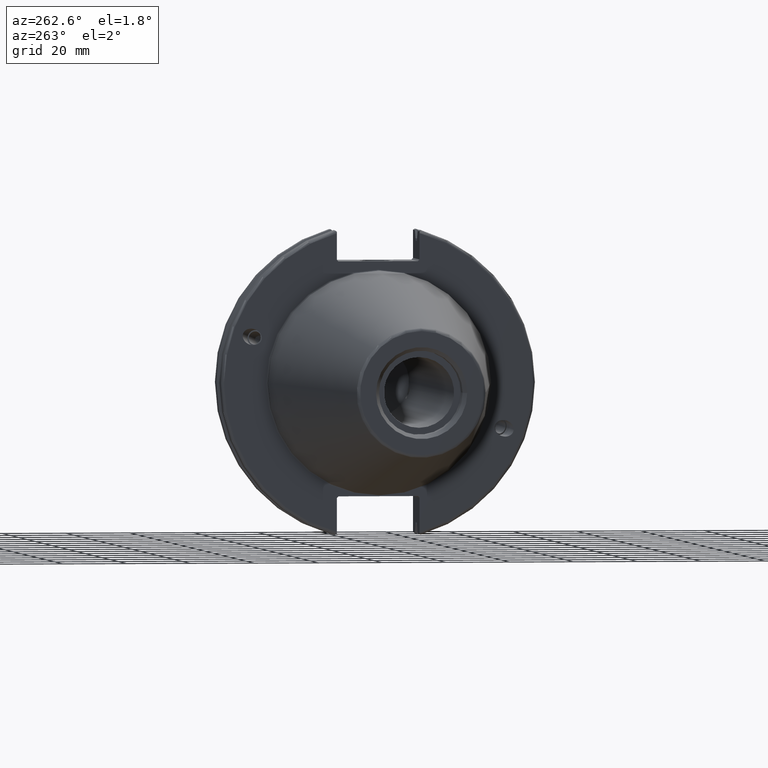
[diagram: clean part render]
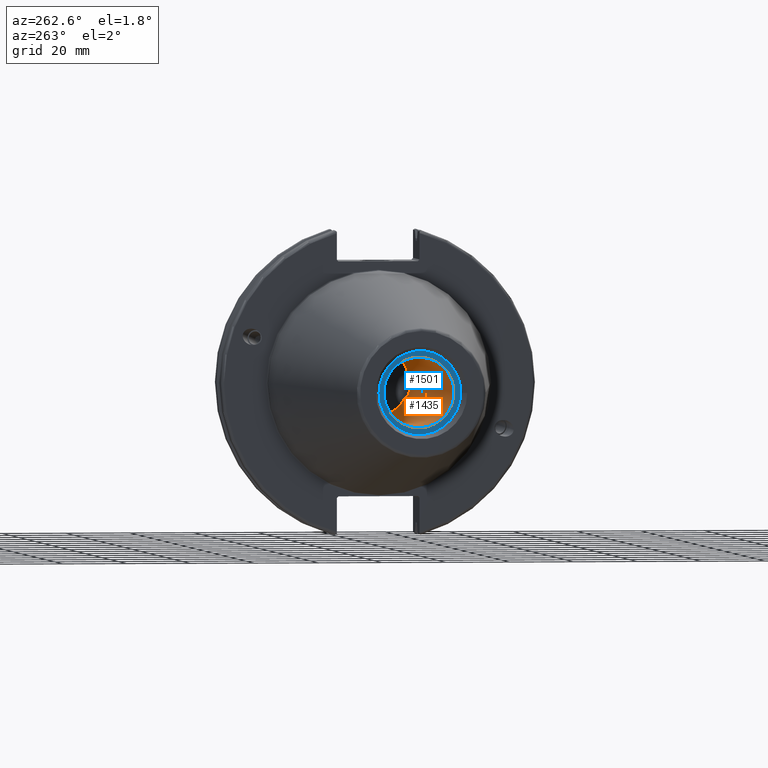
[diagram: same view with the hole feature highlighted: cylindrical wall and planar end face, labeled with their STEP entity ids]
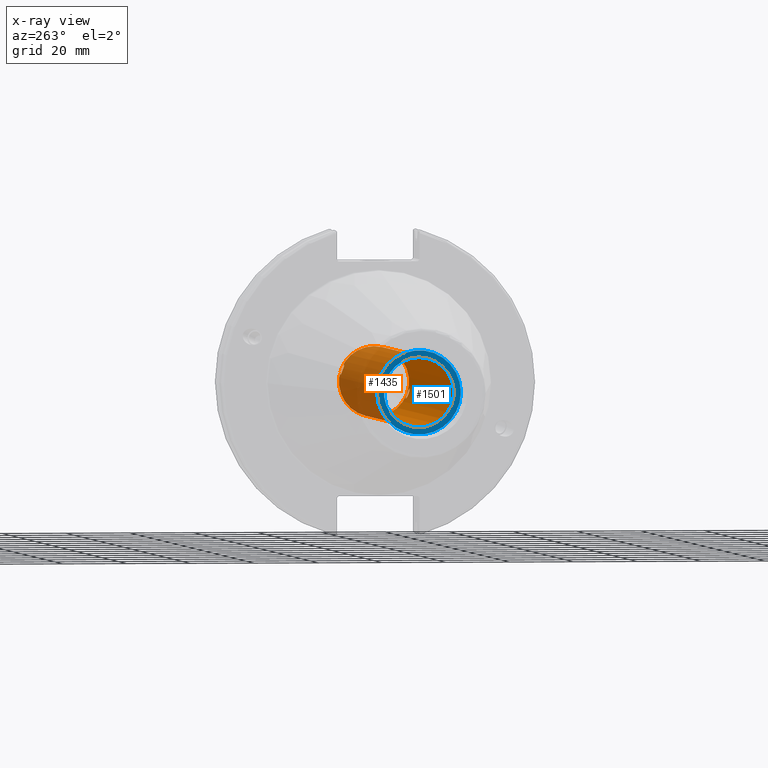
[diagram: x-ray of the same camera — body ghosted, the hole faces saturated]
A machine part, auxiliary view. The highlighted faces form one hole feature of diameter 21.971 mm: the cylindrical wall (entity #1435, orange) and its adjacent planar end face (entity #1501, blue) — they share a circular edge in the B-rep.
The next image is the same camera in x-ray (body ghosted, the hole faces saturated) — the bore reads through the body.
Wall:
#33=B_SPLINE_CURVE_WITH_KNOTS('',3,(#2183,#2184,#2185,#2186,#2187,#2188,
#2189,#2190,#2191,#2192,#2193,#2194,#2195,#2196,#2197,#2198,#2199,#2200,
#2201,#2202,#2203,#2204,#2205,#2206,#2207,#2208),.UNSPECIFIED.,.F.,.F.,
(4,2,2,2,2,2,2,2,2,2,2,2,4),(0.,0.0611574273332741,0.122314854666548,0.183471284102352,
0.244627713538157,0.305784142973961,0.366940572409765,0.428097999743039,
0.489255427076313,0.550412854409587,0.611570281742862,0.672726711178665,
0.733883140614469),.UNSPECIFIED.);
#34=B_SPLINE_CURVE_WITH_KNOTS('',3,(#2209,#2210,#2211,#2212,#2213,#2214,
#2215,#2216,#2217,#2218),.UNSPECIFIED.,.F.,.F.,(4,2,2,2,4),(0.733883140614469,
0.795039570050273,0.856195999486077,0.917353426819352,0.978510854152626),
 .UNSPECIFIED.);
#35=B_SPLINE_CURVE_WITH_KNOTS('',3,(#2221,#2222,#2223,#2224,#2225,#2226,
#2227,#2228,#2229,#2230,#2231,#2232,#2233,#2234,#2235,#2236,#2237,#2238,
#2239,#2240,#2241,#2242,#2243,#2244,#2245,#2246),.UNSPECIFIED.,.F.,.F.,
(4,2,2,2,2,2,2,2,2,2,2,2,4),(0.,0.0611574273332741,0.122314854666548,0.183471284102352,
0.244627713538157,0.305784142973961,0.366940572409765,0.428097999743039,
0.489255427076313,0.550412854409587,0.611570281742862,0.672726711178665,
0.733883140614469),.UNSPECIFIED.);
#36=B_SPLINE_CURVE_WITH_KNOTS('',3,(#2247,#2248,#2249,#2250,#2251,#2252,
#2253,#2254,#2255,#2256),.UNSPECIFIED.,.F.,.F.,(4,2,2,2,4),(0.733883140614469,
0.795039570050273,0.856195999486077,0.917353426819352,0.978510854152626),
 .UNSPECIFIED.);
#98=LINE('',#2180,#188);
#188=VECTOR('',#1773,10.9855);
#266=CYLINDRICAL_SURFACE('',#1562,10.9855);
#291=FACE_BOUND('',#443,.T.);
#292=FACE_BOUND('',#444,.T.);
#356=FACE_OUTER_BOUND('',#442,.T.);
#442=EDGE_LOOP('',(#1031,#1032,#1033,#1034));
#443=EDGE_LOOP('',(#1035,#1036));
#444=EDGE_LOOP('',(#1037,#1038));
#553=CIRCLE('',#1561,10.9855);
#554=CIRCLE('',#1563,10.9855);
#634=VERTEX_POINT('',#2174);
#635=VERTEX_POINT('',#2178);
#636=VERTEX_POINT('',#2181);
#637=VERTEX_POINT('',#2182);
#638=VERTEX_POINT('',#2219);
#639=VERTEX_POINT('',#2220);
#789=EDGE_CURVE('',#634,#634,#553,.T.);
#791=EDGE_CURVE('',#635,#635,#554,.T.);
#792=EDGE_CURVE('',#635,#634,#98,.T.);
#793=EDGE_CURVE('',#636,#637,#33,.T.);
#794=EDGE_CURVE('',#637,#636,#34,.T.);
#795=EDGE_CURVE('',#638,#639,#35,.T.);
#796=EDGE_CURVE('',#639,#638,#36,.T.);
#1031=ORIENTED_EDGE('',*,*,#791,.F.);
#1032=ORIENTED_EDGE('',*,*,#792,.T.);
#1033=ORIENTED_EDGE('',*,*,#789,.F.);
#1034=ORIENTED_EDGE('',*,*,#792,.F.);
#1035=ORIENTED_EDGE('',*,*,#793,.F.);
#1036=ORIENTED_EDGE('',*,*,#794,.F.);
#1037=ORIENTED_EDGE('',*,*,#795,.F.);
#1038=ORIENTED_EDGE('',*,*,#796,.F.);
#1435=ADVANCED_FACE('',(#356,#291,#292),#266,.F.);
#1561=AXIS2_PLACEMENT_3D('',#2175,#1766,#1767);
#1562=AXIS2_PLACEMENT_3D('',#2177,#1769,#1770);
#1563=AXIS2_PLACEMENT_3D('',#2179,#1771,#1772);
#1766=DIRECTION('center_axis',(-1.,0.,0.));
#1767=DIRECTION('ref_axis',(0.,0.,1.));
#1769=DIRECTION('center_axis',(-1.,0.,0.));
#1770=DIRECTION('ref_axis',(0.,0.,1.));
#1771=DIRECTION('center_axis',(1.,0.,0.));
#1772=DIRECTION('ref_axis',(0.,0.,1.));
#1773=DIRECTION('',(1.,0.,0.));
#2174=CARTESIAN_POINT('',(13.4,-1.34533574120333E-15,-10.9855));
#2175=CARTESIAN_POINT('Origin',(13.4,0.,0.));
#2177=CARTESIAN_POINT('Origin',(-44.1,0.,0.));
#2178=CARTESIAN_POINT('',(-95.25,1.34533574120333E-15,-10.9855));
#2179=CARTESIAN_POINT('Origin',(-95.25,0.,0.));
#2180=CARTESIAN_POINT('',(-44.1,-1.34533574120333E-15,-10.9855));
#2181=CARTESIAN_POINT('',(11.1341,-10.7644060814244,-2.19289123400911));
#2182=CARTESIAN_POINT('',(9.5131,-10.3229932856436,-3.75726228450413));
#2183=CARTESIAN_POINT('Ctrl Pts',(11.1341,-10.7644060814244,-2.19289123400911));
#2184=CARTESIAN_POINT('Ctrl Pts',(11.3379580911109,-10.7644060814244,-2.19289123400911));
#2185=CARTESIAN_POINT('Ctrl Pts',(11.5551976425658,-10.7563992112981,-2.23339769026782));
#2186=CARTESIAN_POINT('Ctrl Pts',(11.9544884896352,-10.7211890589831,-2.39672575217716));
#2187=CARTESIAN_POINT('Ctrl Pts',(12.1365656702174,-10.6936730645534,-2.51941648519806));
#2188=CARTESIAN_POINT('Ctrl Pts',(12.4240721687679,-10.6236838882786,-2.79990053351312));
#2189=CARTESIAN_POINT('Ctrl Pts',(12.5487766094346,-10.5764720644486,-2.97648040123253));
#2190=CARTESIAN_POINT('Ctrl Pts',(12.7142987049788,-10.4611409987277,-3.35942344936975));
#2191=CARTESIAN_POINT('Ctrl Pts',(12.7551,-10.3927157215133,-3.56570146632267));
#2192=CARTESIAN_POINT('Ctrl Pts',(12.7551,-10.2532708497739,-3.9488231026856));
#2193=CARTESIAN_POINT('Ctrl Pts',(12.7142987049788,-10.1730946997047,-4.15082415169272));
#2194=CARTESIAN_POINT('Ctrl Pts',(12.5487766094346,-10.015292375161,-4.51830892580662));
#2195=CARTESIAN_POINT('Ctrl Pts',(12.4240721687679,-9.93795537936544,-4.68392412762843));
#2196=CARTESIAN_POINT('Ctrl Pts',(12.1365656702174,-9.81127852795753,-4.94377554954528));
#2197=CARTESIAN_POINT('Ctrl Pts',(11.9544884896352,-9.75349291957811,-5.05544904408574));
#2198=CARTESIAN_POINT('Ctrl Pts',(11.5551976425658,-9.67548020659099,-5.20319824796008));
#2199=CARTESIAN_POINT('Ctrl Pts',(11.3379580911109,-9.65557677676255,-5.23937471059702));
#2200=CARTESIAN_POINT('Ctrl Pts',(10.9302419088891,-9.65557677676255,-5.23937471059702));
#2201=CARTESIAN_POINT('Ctrl Pts',(10.7130023574342,-9.67548020659099,-5.20319824796008));
#2202=CARTESIAN_POINT('Ctrl Pts',(10.3137115103648,-9.75349291957811,-5.05544904408574));
#2203=CARTESIAN_POINT('Ctrl Pts',(10.1316343297826,-9.81127852795753,-4.94377554954527));
#2204=CARTESIAN_POINT('Ctrl Pts',(9.84412783123205,-9.93795537936544,-4.68392412762843));
#2205=CARTESIAN_POINT('Ctrl Pts',(9.71942339056537,-10.015292375161,-4.51830892580662));
#2206=CARTESIAN_POINT('Ctrl Pts',(9.55390129502121,-10.1730946997047,-4.15082415169272));
#2207=CARTESIAN_POINT('Ctrl Pts',(9.5131,-10.2532708497739,-3.9488231026856));
#2208=CARTESIAN_POINT('Ctrl Pts',(9.5131,-10.3229932856436,-3.75726228450413));
#2209=CARTESIAN_POINT('Ctrl Pts',(9.5131,-10.3229932856436,-3.75726228450413));
#2210=CARTESIAN_POINT('Ctrl Pts',(9.5131,-10.3927157215133,-3.56570146632267));
#2211=CARTESIAN_POINT('Ctrl Pts',(9.55390129502121,-10.4611409987277,-3.35942344936976));
#2212=CARTESIAN_POINT('Ctrl Pts',(9.71942339056537,-10.5764720644486,-2.97648040123254));
#2213=CARTESIAN_POINT('Ctrl Pts',(9.84412783123205,-10.6236838882786,-2.79990053351312));
#2214=CARTESIAN_POINT('Ctrl Pts',(10.1316343297826,-10.6936730645534,-2.51941648519806));
#2215=CARTESIAN_POINT('Ctrl Pts',(10.3137115103648,-10.7211890589831,-2.39672575217717));
#2216=CARTESIAN_POINT('Ctrl Pts',(10.7130023574342,-10.7563992112981,-2.23339769026782));
#2217=CARTESIAN_POINT('Ctrl Pts',(10.9302419088891,-10.7644060814244,-2.19289123400911));
#2218=CARTESIAN_POINT('Ctrl Pts',(11.1341,-10.7644060814244,-2.19289123400911));
#2219=CARTESIAN_POINT('',(11.1341,10.7644060814244,2.19289123400911));
#2220=CARTESIAN_POINT('',(9.5131,10.3229932856436,3.75726228450413));
#2221=CARTESIAN_POINT('Ctrl Pts',(11.1341,10.7644060814244,2.19289123400911));
#2222=CARTESIAN_POINT('Ctrl Pts',(11.3379580911109,10.7644060814244,2.19289123400911));
#2223=CARTESIAN_POINT('Ctrl Pts',(11.5551976425658,10.7563992112981,2.23339769026782));
#2224=CARTESIAN_POINT('Ctrl Pts',(11.9544884896352,10.7211890589831,2.39672575217716));
#2225=CARTESIAN_POINT('Ctrl Pts',(12.1365656702174,10.6936730645534,2.51941648519806));
#2226=CARTESIAN_POINT('Ctrl Pts',(12.4240721687679,10.6236838882786,2.79990053351312));
#2227=CARTESIAN_POINT('Ctrl Pts',(12.5487766094346,10.5764720644486,2.97648040123253));
#2228=CARTESIAN_POINT('Ctrl Pts',(12.7142987049788,10.4611409987277,3.35942344936975));
#2229=CARTESIAN_POINT('Ctrl Pts',(12.7551,10.3927157215133,3.56570146632267));
#2230=CARTESIAN_POINT('Ctrl Pts',(12.7551,10.2532708497739,3.9488231026856));
#2231=CARTESIAN_POINT('Ctrl Pts',(12.7142987049788,10.1730946997047,4.15082415169272));
#2232=CARTESIAN_POINT('Ctrl Pts',(12.5487766094346,10.015292375161,4.51830892580662));
#2233=CARTESIAN_POINT('Ctrl Pts',(12.4240721687679,9.93795537936544,4.68392412762843));
#2234=CARTESIAN_POINT('Ctrl Pts',(12.1365656702174,9.81127852795753,4.94377554954528));
#2235=CARTESIAN_POINT('Ctrl Pts',(11.9544884896352,9.75349291957811,5.05544904408574));
#2236=CARTESIAN_POINT('Ctrl Pts',(11.5551976425658,9.67548020659099,5.20319824796008));
#2237=CARTESIAN_POINT('Ctrl Pts',(11.3379580911109,9.65557677676255,5.23937471059702));
#2238=CARTESIAN_POINT('Ctrl Pts',(10.9302419088891,9.65557677676255,5.23937471059702));
#2239=CARTESIAN_POINT('Ctrl Pts',(10.7130023574342,9.67548020659099,5.20319824796008));
#2240=CARTESIAN_POINT('Ctrl Pts',(10.3137115103648,9.75349291957811,5.05544904408574));
#2241=CARTESIAN_POINT('Ctrl Pts',(10.1316343297826,9.81127852795753,4.94377554954527));
#2242=CARTESIAN_POINT('Ctrl Pts',(9.84412783123205,9.93795537936544,4.68392412762843));
#2243=CARTESIAN_POINT('Ctrl Pts',(9.71942339056537,10.015292375161,4.51830892580662));
#2244=CARTESIAN_POINT('Ctrl Pts',(9.55390129502121,10.1730946997047,4.15082415169272));
#2245=CARTESIAN_POINT('Ctrl Pts',(9.5131,10.2532708497739,3.9488231026856));
#2246=CARTESIAN_POINT('Ctrl Pts',(9.5131,10.3229932856436,3.75726228450413));
#2247=CARTESIAN_POINT('Ctrl Pts',(9.5131,10.3229932856436,3.75726228450413));
#2248=CARTESIAN_POINT('Ctrl Pts',(9.5131,10.3927157215133,3.56570146632267));
#2249=CARTESIAN_POINT('Ctrl Pts',(9.55390129502121,10.4611409987277,3.35942344936976));
#2250=CARTESIAN_POINT('Ctrl Pts',(9.71942339056537,10.5764720644486,2.97648040123254));
#2251=CARTESIAN_POINT('Ctrl Pts',(9.84412783123205,10.6236838882786,2.79990053351313));
#2252=CARTESIAN_POINT('Ctrl Pts',(10.1316343297826,10.6936730645534,2.51941648519806));
#2253=CARTESIAN_POINT('Ctrl Pts',(10.3137115103648,10.7211890589831,2.39672575217717));
#2254=CARTESIAN_POINT('Ctrl Pts',(10.7130023574342,10.7563992112981,2.23339769026782));
#2255=CARTESIAN_POINT('Ctrl Pts',(10.9302419088891,10.7644060814244,2.19289123400911));
#2256=CARTESIAN_POINT('Ctrl Pts',(11.1341,10.7644060814244,2.19289123400911));
End face:
#308=FACE_BOUND('',#526,.T.);
#343=PLANE('',#1679);
#422=FACE_OUTER_BOUND('',#525,.T.);
#525=EDGE_LOOP('',(#1382));
#526=EDGE_LOOP('',(#1383));
#554=CIRCLE('',#1563,10.9855);
#603=CIRCLE('',#1680,13.1);
#635=VERTEX_POINT('',#2178);
#754=VERTEX_POINT('',#3012);
#791=EDGE_CURVE('',#635,#635,#554,.T.);
#968=EDGE_CURVE('',#754,#754,#603,.T.);
#1382=ORIENTED_EDGE('',*,*,#968,.F.);
#1383=ORIENTED_EDGE('',*,*,#791,.T.);
#1501=ADVANCED_FACE('',(#422,#308),#343,.T.);
#1563=AXIS2_PLACEMENT_3D('',#2179,#1771,#1772);
#1679=AXIS2_PLACEMENT_3D('',#3011,#2075,#2076);
#1680=AXIS2_PLACEMENT_3D('',#3013,#2077,#2078);
#1771=DIRECTION('center_axis',(1.,0.,0.));
#1772=DIRECTION('ref_axis',(0.,0.,1.));
#2075=DIRECTION('center_axis',(-1.,0.,0.));
#2076=DIRECTION('ref_axis',(0.,0.,1.));
#2077=DIRECTION('center_axis',(1.,0.,0.));
#2078=DIRECTION('ref_axis',(0.,0.,-1.));
#2178=CARTESIAN_POINT('',(-95.25,1.34533574120333E-15,-10.9855));
#2179=CARTESIAN_POINT('Origin',(-95.25,0.,0.));
#3011=CARTESIAN_POINT('Origin',(-95.25,13.1,0.));
#3012=CARTESIAN_POINT('',(-95.25,-13.1,-1.60428730688303E-15));
#3013=CARTESIAN_POINT('Origin',(-95.25,0.,0.));